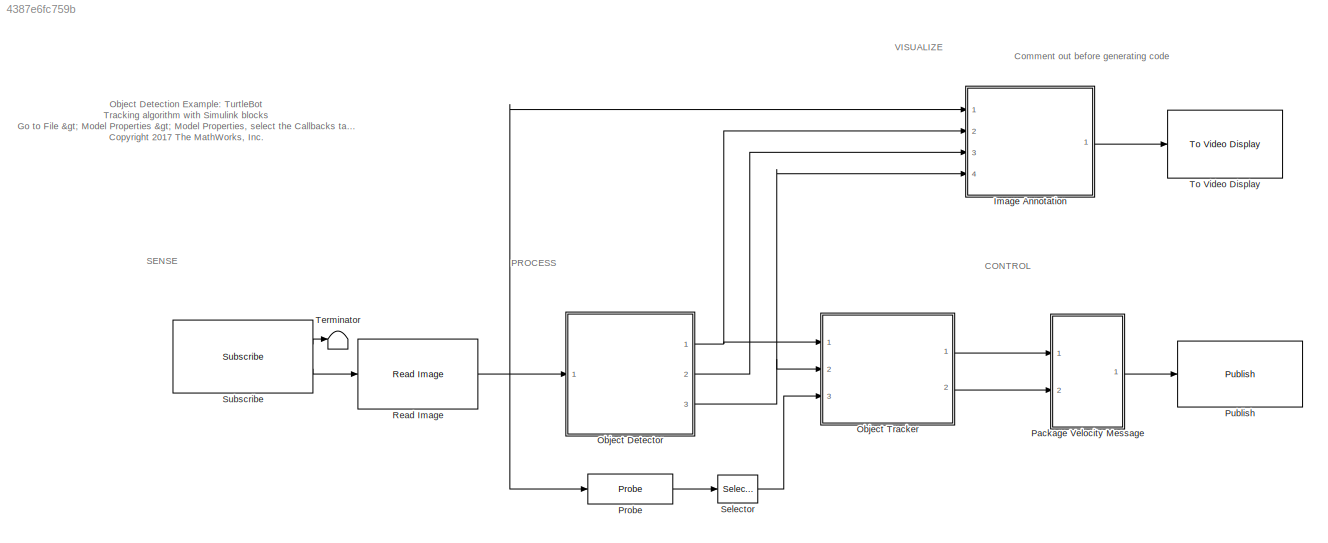
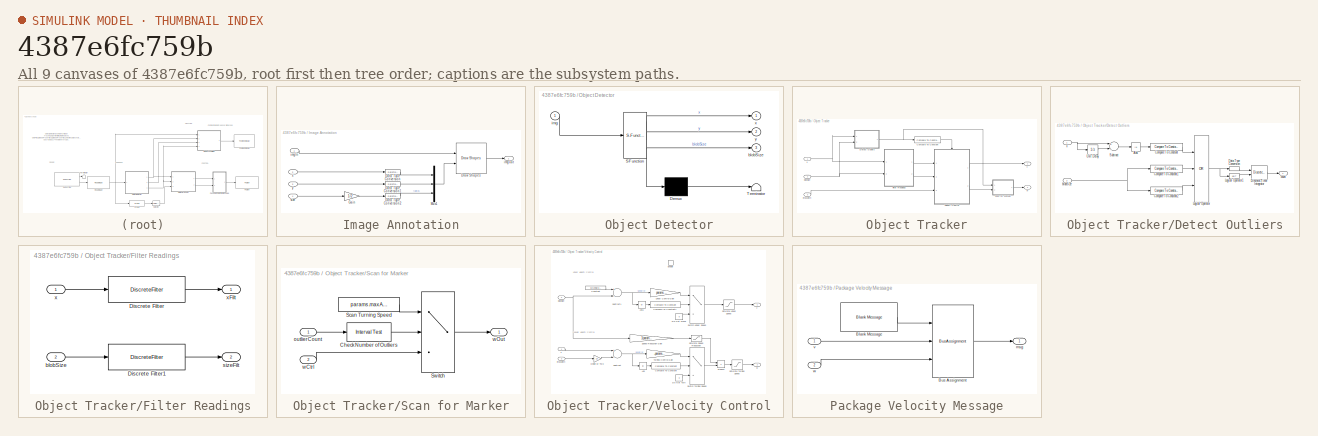
[diagram: thumbnail index - all 9 canvases of the model, root first then tree order]
MODEL slx_4387e6fc759b
KIND model
CONFIG AbsTol = auto
CONFIG EnableMultiTasking = off
CONFIG FixedStep = params.Ts
CONFIG MaxStep = auto
CONFIG MinStep = auto
CONFIG PreLoadFcn = params = controlParams;\n\nrosshutdown;\nloadIpAddresses;\nrosinit(turtlebotIp);
CONFIG RelTol = 1e-3
CONFIG SampleTimeConstraint = Unconstrained
CONFIG Solver = FixedStepDiscrete
CONFIG SolverName = FixedStepDiscrete
CONFIG StartTime = 0.0
CONFIG StopTime = inf
WORKSPACE source: MAT-file member
WORKSPACE SL_ROS_VariableLengthArrays_MaxSizes: struct (value not decoded)
BLOCK [SubSystem] Image Annotation
  Ports = [4, 1]
  RequestExecContextInheritance = off
  Variant = off
BLOCK [DataTypeConversion] Image Annotation/Data Type Conversion
  OutDataTypeStr = int32
  RndMeth = Floor
  SaturateOnIntegerOverflow = off
BLOCK [DataTypeConversion] Image Annotation/Data Type Conversion1
  OutDataTypeStr = int32
  RndMeth = Floor
  SaturateOnIntegerOverflow = off
BLOCK [DataTypeConversion] Image Annotation/Data Type Conversion2
  OutDataTypeStr = int32
  RndMeth = Floor
  SaturateOnIntegerOverflow = off
BLOCK [Reference] Image Annotation/Draw Shapes  REF=visiontextngfix/Draw Shapes
  Ports = [2, 1]
  SourceBlock = visiontextngfix/Draw Shapes
  SourceProductBaseCode = VP
  SourceProductName = Computer Vision System Toolbox
  SourceType = Draw Shapes
BLOCK [Gain] Image Annotation/Gain
  Gain = 1/2
  OutDataTypeStr = Inherit: Inherit via internal rule
  ParamDataTypeStr = Inherit: Inherit via internal rule
  SaturateOnIntegerOverflow = off
BLOCK [Mux] Image Annotation/Mux1
  DisplayOption = bar
  Inputs = 3
  Ports = [3, 1]
BLOCK [Inport] Image Annotation/imgIn
  IconDisplay = Port number
BLOCK [Outport] Image Annotation/imgOut
  IconDisplay = Port number
BLOCK [Inport] Image Annotation/size
  IconDisplay = Port number
  Port = 4
BLOCK [Inport] Image Annotation/x
  IconDisplay = Port number
  Port = 2
BLOCK [Inport] Image Annotation/y
  IconDisplay = Port number
  Port = 3
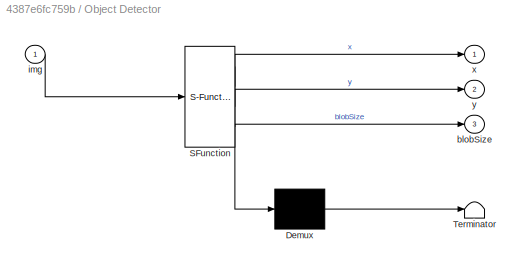
BLOCK [SubSystem] Object Detector
  ErrorFcn = Stateflow.Translate.translate
  PermitHierarchicalResolution = ExplicitOnly
  Ports = [1, 3]
  RequestExecContextInheritance = off
  SFBlockType = MATLAB Function
  TreatAsAtomicUnit = on
  Variant = off
BLOCK [Demux] Object Detector/ Demux 
  Outputs = 1
  Ports = [1, 1]
BLOCK [S-Function] Object Detector/ SFunction 
  EnableBusSupport = on
  FunctionName = sf_sfun
  PortCounts = [1 4]
  Ports = [1, 4]
  SFcnIsStateOwnerBlock = off
  SFunctionDeploymentMode = off
  Tag = Stateflow S-Function turtleBotExampleSimulink 1
BLOCK [Terminator] Object Detector/ Terminator 
BLOCK [Outport] Object Detector/blobSize
  IconDisplay = Port number
  Port = 3
BLOCK [Inport] Object Detector/img
  IconDisplay = Port number
BLOCK [Outport] Object Detector/x
  IconDisplay = Port number
BLOCK [Outport] Object Detector/y
  IconDisplay = Port number
  Port = 2
BLOCK [SubSystem] Object Tracker
  Ports = [3, 2]
  RequestExecContextInheritance = off
  Variant = off
BLOCK [Reference] Object Tracker/Compare To Constant  REF=simulink/Logic and Bit
Operations/Compare
To Constant
  Ports = [1, 1]
  SourceBlock = simulink/Logic and Bit\nOperations/Compare\nTo Constant
  SourceProductBaseCode = SL
  SourceProductName = Simulink
  SourceType = Compare To Constant
BLOCK [SubSystem] Object Tracker/Detect Outliers
  Ports = [2, 1]
  RequestExecContextInheritance = off
  Variant = off
BLOCK [Abs] Object Tracker/Detect Outliers/Abs
  SaturateOnIntegerOverflow = off
BLOCK [Reference] Object Tracker/Detect Outliers/Compare To Constant  REF=simulink/Logic and Bit
Operations/Compare
To Constant
  Ports = [1, 1]
  SourceBlock = simulink/Logic and Bit\nOperations/Compare\nTo Constant
  SourceProductBaseCode = SL
  SourceProductName = Simulink
  SourceType = Compare To Constant
BLOCK [Reference] Object Tracker/Detect Outliers/Compare To Constant1  REF=simulink/Logic and Bit
Operations/Compare
To Constant
  Ports = [1, 1]
  SourceBlock = simulink/Logic and Bit\nOperations/Compare\nTo Constant
  SourceProductBaseCode = SL
  SourceProductName = Simulink
  SourceType = Compare To Constant
BLOCK [Reference] Object Tracker/Detect Outliers/Compare To Constant2  REF=simulink/Logic and Bit
Operations/Compare
To Constant
  Ports = [1, 1]
  SourceBlock = simulink/Logic and Bit\nOperations/Compare\nTo Constant
  SourceProductBaseCode = SL
  SourceProductName = Simulink
  SourceType = Compare To Constant
BLOCK [DataTypeConversion] Object Tracker/Detect Outliers/Data Type Conversion
  OutDataTypeStr = uint16
  RndMeth = Floor
  SaturateOnIntegerOverflow = off
BLOCK [DiscreteIntegrator] Object Tracker/Detect Outliers/Discrete-Time Integrator
  ExternalReset = level
  ICPrevOutput = DiscIntNeverNeededParam
  ICPrevScaledInput = DiscIntNeverNeededParam
  InitialConditionSetting = State (most efficient)
  IntegratorMethod = Accumulation: Forward Euler
  LimitOutput = on
  LowerSaturationLimit = 0
  Ports = [2, 1]
  SampleTime = -1
  SaturateOnIntegerOverflow = on
  UpperSaturationLimit = 1000
BLOCK [Logic] Object Tracker/Detect Outliers/Logical Operator
  AllPortsSameDT = off
  Inputs = 3
  Operator = OR
  OutDataTypeStr = boolean
  Ports = [3, 1]
BLOCK [Logic] Object Tracker/Detect Outliers/Logical Operator1
  AllPortsSameDT = off
  Operator = NOT
  OutDataTypeStr = boolean
  Ports = [1, 1]
BLOCK [Sum] Object Tracker/Detect Outliers/Subtract
  InputSameDT = off
  Inputs = +-
  OutDataTypeStr = Inherit: Inherit via internal rule
  Ports = [2, 1]
  SaturateOnIntegerOverflow = off
BLOCK [UnitDelay] Object Tracker/Detect Outliers/Unit Delay
  InputProcessing = Elements as channels (sample based)
  SampleTime = -1
BLOCK [Inport] Object Tracker/Detect Outliers/blobSize
  IconDisplay = Port number
  Port = 2
BLOCK [Outport] Object Tracker/Detect Outliers/count
  IconDisplay = Port number
BLOCK [Inport] Object Tracker/Detect Outliers/x
  IconDisplay = Port number
BLOCK [SubSystem] Object Tracker/Filter Readings
  Ports = [2, 2]
  RequestExecContextInheritance = off
  Variant = off
BLOCK [DiscreteFilter] Object Tracker/Filter Readings/Discrete Filter
  Denominator = [params.bufSize]
  InputPortMap = u0
  Numerator = [ones(1,params.bufSize)]
  Ports = [1, 1]
BLOCK [DiscreteFilter] Object Tracker/Filter Readings/Discrete Filter1
  Denominator = [params.bufSize]
  InputPortMap = u0
  Numerator = [ones(1,params.bufSize)]
  Ports = [1, 1]
BLOCK [Inport] Object Tracker/Filter Readings/blobSize
  IconDisplay = Port number
  Port = 2
BLOCK [Outport] Object Tracker/Filter Readings/sizeFilt
  IconDisplay = Port number
  Port = 2
BLOCK [Inport] Object Tracker/Filter Readings/x
  IconDisplay = Port number
BLOCK [Outport] Object Tracker/Filter Readings/xFilt
  IconDisplay = Port number
BLOCK [SubSystem] Object Tracker/Scan for Marker
  Ports = [2, 1]
  RequestExecContextInheritance = off
  Variant = off
BLOCK [Reference] Object Tracker/Scan for Marker/Check Number of Outliers  REF=simulink/Logic and Bit
Operations/Interval Test
  Ports = [1, 1]
  SourceBlock = simulink/Logic and Bit\nOperations/Interval Test
  SourceProductBaseCode = SL
  SourceProductName = Simulink
  SourceType = Interval Test
BLOCK [Constant] Object Tracker/Scan for Marker/Scan Turning Speed
  Value = params.maxAngVel/2
BLOCK [Switch] Object Tracker/Scan for Marker/Switch
  Criteria = u2 > Threshold
  InputSameDT = off
  SaturateOnIntegerOverflow = off
BLOCK [Inport] Object Tracker/Scan for Marker/outlierCount
  IconDisplay = Port number
BLOCK [Inport] Object Tracker/Scan for Marker/wCtrl
  IconDisplay = Port number
  Port = 2
BLOCK [Outport] Object Tracker/Scan for Marker/wOut
  IconDisplay = Port number
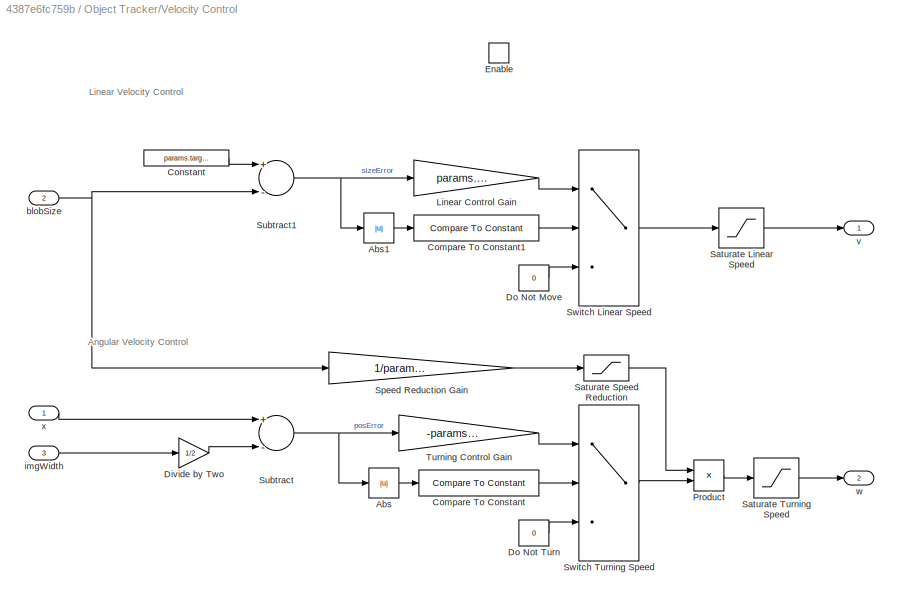
BLOCK [SubSystem] Object Tracker/Velocity Control
  Ports = [3, 2, 1]
  RequestExecContextInheritance = off
  Variant = off
BLOCK [Abs] Object Tracker/Velocity Control/Abs
  SaturateOnIntegerOverflow = off
BLOCK [Abs] Object Tracker/Velocity Control/Abs1
  SaturateOnIntegerOverflow = off
BLOCK [Reference] Object Tracker/Velocity Control/Compare To Constant  REF=simulink/Logic and Bit
Operations/Compare
To Constant
  Ports = [1, 1]
  SourceBlock = simulink/Logic and Bit\nOperations/Compare\nTo Constant
  SourceProductBaseCode = SL
  SourceProductName = Simulink
  SourceType = Compare To Constant
BLOCK [Reference] Object Tracker/Velocity Control/Compare To Constant1  REF=simulink/Logic and Bit
Operations/Compare
To Constant
  Ports = [1, 1]
  SourceBlock = simulink/Logic and Bit\nOperations/Compare\nTo Constant
  SourceProductBaseCode = SL
  SourceProductName = Simulink
  SourceType = Compare To Constant
BLOCK [Constant] Object Tracker/Velocity Control/Constant
  Value = params.targetSize
BLOCK [Gain] Object Tracker/Velocity Control/Divide by Two
  Gain = 1/2
  OutDataTypeStr = Inherit: Inherit via internal rule
  ParamDataTypeStr = Inherit: Inherit via internal rule
  SaturateOnIntegerOverflow = off
BLOCK [Constant] Object Tracker/Velocity Control/Do Not Move
  Value = 0
BLOCK [Constant] Object Tracker/Velocity Control/Do Not Turn
  Value = 0
BLOCK [EnablePort] Object Tracker/Velocity Control/Enable
  Ports = []
  StatesWhenEnabling = reset
BLOCK [Gain] Object Tracker/Velocity Control/Linear Control Gain
  Gain = params.linVelGain
  OutDataTypeStr = Inherit: Inherit via internal rule
  ParamDataTypeStr = Inherit: Inherit via internal rule
  SaturateOnIntegerOverflow = off
BLOCK [Product] Object Tracker/Velocity Control/Product
  InputSameDT = off
  OutDataTypeStr = Inherit: Inherit via internal rule
  Ports = [2, 1]
  RndMeth = Floor
  SaturateOnIntegerOverflow = off
BLOCK [Saturate] Object Tracker/Velocity Control/Saturate Linear Speed
  InputPortMap = u0
  LowerLimit = -params.maxLinVel
  Ports = [1, 1]
  UpperLimit = params.maxLinVel
BLOCK [Saturate] Object Tracker/Velocity Control/Saturate Speed Reduction
  InputPortMap = u0
  LowerLimit = 0
  Ports = [1, 1]
  UpperLimit = 1
BLOCK [Saturate] Object Tracker/Velocity Control/Saturate Turning Speed
  InputPortMap = u0
  LowerLimit = -params.maxAngVel
  Ports = [1, 1]
  UpperLimit = params.maxAngVel
BLOCK [Gain] Object Tracker/Velocity Control/Speed Reduction Gain
  Gain = 1/params.speedRedSize
  OutDataTypeStr = Inherit: Inherit via internal rule
  ParamDataTypeStr = Inherit: Inherit via internal rule
  SaturateOnIntegerOverflow = off
BLOCK [Sum] Object Tracker/Velocity Control/Subtract
  InputSameDT = off
  Inputs = +-
  OutDataTypeStr = Inherit: Inherit via internal rule
  Ports = [2, 1]
  SaturateOnIntegerOverflow = off
BLOCK [Sum] Object Tracker/Velocity Control/Subtract1
  InputSameDT = off
  Inputs = +-
  OutDataTypeStr = Inherit: Inherit via internal rule
  Ports = [2, 1]
  SaturateOnIntegerOverflow = off
BLOCK [Switch] Object Tracker/Velocity Control/Switch Linear Speed
  Criteria = u2 ~= 0
  InputSameDT = off
  SaturateOnIntegerOverflow = off
BLOCK [Switch] Object Tracker/Velocity Control/Switch Turning Speed
  Criteria = u2 ~= 0
  InputSameDT = off
  SaturateOnIntegerOverflow = off
BLOCK [Gain] Object Tracker/Velocity Control/Turning Control Gain
  Gain = -params.angVelGain
  OutDataTypeStr = Inherit: Inherit via internal rule
  ParamDataTypeStr = Inherit: Inherit via internal rule
  SaturateOnIntegerOverflow = off
BLOCK [Inport] Object Tracker/Velocity Control/blobSize
  IconDisplay = Port number
  Port = 2
BLOCK [Inport] Object Tracker/Velocity Control/imgWidth
  IconDisplay = Port number
  Port = 3
BLOCK [Outport] Object Tracker/Velocity Control/v
  IconDisplay = Port number
  InitialOutput = 0
  OutputWhenDisabled = reset
BLOCK [Outport] Object Tracker/Velocity Control/w
  IconDisplay = Port number
  InitialOutput = 0
  OutputWhenDisabled = reset
  Port = 2
BLOCK [Inport] Object Tracker/Velocity Control/x
  IconDisplay = Port number
BLOCK [Inport] Object Tracker/blobSize
  IconDisplay = Port number
  Port = 2
BLOCK [Inport] Object Tracker/imgWidth
  IconDisplay = Port number
  Port = 3
BLOCK [Outport] Object Tracker/v
  IconDisplay = Port number
BLOCK [Outport] Object Tracker/w
  IconDisplay = Port number
  Port = 2
BLOCK [Inport] Object Tracker/x
  IconDisplay = Port number
BLOCK [SubSystem] Package Velocity Message
  Ports = [2, 1]
  RequestExecContextInheritance = off
  Variant = off
BLOCK [Reference] Package Velocity Message/Blank Message  REF=robotlib/Blank Message
  Ports = [0, 1]
  SourceBlock = robotlib/Blank Message
  SourceLibraryInfo = This block requires Robotics System Toolbox
  SourceProductBaseCode = RO
  SourceProductName = Robotics System Toolbox
  SourceType = ROS Blank Message
BLOCK [BusAssignment] Package Velocity Message/Bus Assignment
  AssignedSignals = Linear.X,Angular.Z
  Ports = [3, 1]
BLOCK [Outport] Package Velocity Message/msg
  IconDisplay = Port number
BLOCK [Inport] Package Velocity Message/v
  IconDisplay = Port number
BLOCK [Inport] Package Velocity Message/w
  IconDisplay = Port number
  Port = 2
BLOCK [Probe] Probe
  Ports = [1, 1]
  ProbeComplexSignal = off
  ProbeSampleTime = off
  ProbeSignalDimensions = on
  ProbeWidth = off
BLOCK [Reference] Publish  REF=robotlib/Publish
  Ports = [1]
  SourceBlock = robotlib/Publish
  SourceLibraryInfo = This block requires Robotics System Toolbox
  SourceProductBaseCode = RO
  SourceProductName = Robotics System Toolbox
  SourceType = ROS Publish
BLOCK [Reference] Read Image  REF=robotlib/Read Image
  Ports = [1, 1]
  SourceBlock = robotlib/Read Image
  SourceLibraryInfo = This block requires Robotics System Toolbox
  SourceProductBaseCode = RO
  SourceProductName = Robotics System Toolbox
  SourceType = robotics.slros.internal.block.ReadImage
BLOCK [Selector] Selector
  IndexOptions = Index vector (dialog)
  Indices = 2
  InputPortWidth = 3
  OutputSizes = 1
  Ports = [1, 1]
BLOCK [Reference] Subscribe  REF=robotlib/Subscribe
  Ports = [0, 2]
  SourceBlock = robotlib/Subscribe
  SourceLibraryInfo = This block requires Robotics System Toolbox
  SourceProductBaseCode = RO
  SourceProductName = Robotics System Toolbox
  SourceType = ROS Subscribe
BLOCK [Terminator] Terminator
BLOCK [Reference] To Video Display  REF=visionsinks/To Video Display
  Ports = [1]
  SourceBlock = visionsinks/To Video Display
  SourceProductBaseCode = VP
  SourceProductName = Computer Vision System Toolbox
  SourceType = To Video Display
ANNOTATION (root): Object Detection Example: TurtleBot Tracking algorithm with Simulink blocks Go to File > Model Properties > Model Properties , select the Callbacks tab, and go to PreLoadFcn . Here, you can set up MATLAB code to run when loading the model, such as initalizing ROS with the correct IP address. <copyright redacted>
ANNOTATION (root): CONTROL
ANNOTATION (root): Comment out before generating code
ANNOTATION (root): PROCESS
ANNOTATION (root): SENSE
ANNOTATION (root): VISUALIZE
ANNOTATION Object Tracker/Velocity Control: Angular Velocity Control
ANNOTATION Object Tracker/Velocity Control: Linear Velocity Control
LINE Image Annotation/Data Type Conversion1:1 -> Image Annotation/Mux1:2
LINE Image Annotation/Data Type Conversion2:1 -> Image Annotation/Mux1:3
LINE Image Annotation/Data Type Conversion:1 -> Image Annotation/Mux1:1
LINE Image Annotation/Draw Shapes:1 -> Image Annotation/imgOut:1
LINE Image Annotation/Gain:1 -> Image Annotation/Data Type Conversion2:1
LINE Image Annotation/Mux1:1 -> Image Annotation/Draw Shapes:2
LINE Image Annotation/imgIn:1 -> Image Annotation/Draw Shapes:1
LINE Image Annotation/size:1 -> Image Annotation/Gain:1
LINE Image Annotation/x:1 -> Image Annotation/Data Type Conversion:1
LINE Image Annotation/y:1 -> Image Annotation/Data Type Conversion1:1
LINE Image Annotation:1 -> To Video Display:1
NET Object Detector:1 -> Image Annotation:2, Object Tracker:1
LINE Object Detector:2 -> Image Annotation:3
NET Object Detector:3 -> Image Annotation:4, Object Tracker:2
LINE Object Tracker/Compare To Constant:1 -> Object Tracker/Velocity Control:enable
LINE Object Tracker/Detect Outliers/Abs:1 -> Object Tracker/Detect Outliers/Compare To Constant:1
LINE Object Tracker/Detect Outliers/Compare To Constant1:1 -> Object Tracker/Detect Outliers/Logical Operator:2
LINE Object Tracker/Detect Outliers/Compare To Constant2:1 -> Object Tracker/Detect Outliers/Logical Operator:3
LINE Object Tracker/Detect Outliers/Compare To Constant:1 -> Object Tracker/Detect Outliers/Logical Operator:1
LINE Object Tracker/Detect Outliers/Data Type Conversion:1 -> Object Tracker/Detect Outliers/Discrete-Time Integrator:1
LINE Object Tracker/Detect Outliers/Discrete-Time Integrator:1 -> Object Tracker/Detect Outliers/count:1
LINE Object Tracker/Detect Outliers/Logical Operator1:1 -> Object Tracker/Detect Outliers/Discrete-Time Integrator:2
NET Object Tracker/Detect Outliers/Logical Operator:1 -> Object Tracker/Detect Outliers/Data Type Conversion:1, Object Tracker/Detect Outliers/Logical Operator1:1
LINE Object Tracker/Detect Outliers/Subtract:1 -> Object Tracker/Detect Outliers/Abs:1
LINE Object Tracker/Detect Outliers/Unit Delay:1 -> Object Tracker/Detect Outliers/Subtract:2
NET Object Tracker/Detect Outliers/blobSize:1 -> Object Tracker/Detect Outliers/Compare To Constant1:1, Object Tracker/Detect Outliers/Compare To Constant2:1
NET Object Tracker/Detect Outliers/x:1 -> Object Tracker/Detect Outliers/Subtract:1, Object Tracker/Detect Outliers/Unit Delay:1
NET Object Tracker/Detect Outliers:1 -> Object Tracker/Compare To Constant:1, Object Tracker/Scan for Marker:1
LINE Object Tracker/Filter Readings/Discrete Filter1:1 -> Object Tracker/Filter Readings/sizeFilt:1
LINE Object Tracker/Filter Readings/Discrete Filter:1 -> Object Tracker/Filter Readings/xFilt:1
LINE Object Tracker/Filter Readings/blobSize:1 -> Object Tracker/Filter Readings/Discrete Filter1:1
LINE Object Tracker/Filter Readings/x:1 -> Object Tracker/Filter Readings/Discrete Filter:1
LINE Object Tracker/Filter Readings:1 -> Object Tracker/Velocity Control:1
LINE Object Tracker/Filter Readings:2 -> Object Tracker/Velocity Control:2
LINE Object Tracker/Scan for Marker/Check Number of Outliers:1 -> Object Tracker/Scan for Marker/Switch:2
LINE Object Tracker/Scan for Marker/Scan Turning Speed:1 -> Object Tracker/Scan for Marker/Switch:1
LINE Object Tracker/Scan for Marker/Switch:1 -> Object Tracker/Scan for Marker/wOut:1
LINE Object Tracker/Scan for Marker/outlierCount:1 -> Object Tracker/Scan for Marker/Check Number of Outliers:1
LINE Object Tracker/Scan for Marker/wCtrl:1 -> Object Tracker/Scan for Marker/Switch:3
LINE Object Tracker/Scan for Marker:1 -> Object Tracker/w:1
LINE Object Tracker/Velocity Control/Abs1:1 -> Object Tracker/Velocity Control/Compare To Constant1:1
LINE Object Tracker/Velocity Control/Abs:1 -> Object Tracker/Velocity Control/Compare To Constant:1
LINE Object Tracker/Velocity Control/Compare To Constant1:1 -> Object Tracker/Velocity Control/Switch Linear Speed:2
LINE Object Tracker/Velocity Control/Compare To Constant:1 -> Object Tracker/Velocity Control/Switch Turning Speed:2
LINE Object Tracker/Velocity Control/Constant:1 -> Object Tracker/Velocity Control/Subtract1:1
LINE Object Tracker/Velocity Control/Divide by Two:1 -> Object Tracker/Velocity Control/Subtract:2
LINE Object Tracker/Velocity Control/Do Not Move:1 -> Object Tracker/Velocity Control/Switch Linear Speed:3
LINE Object Tracker/Velocity Control/Do Not Turn:1 -> Object Tracker/Velocity Control/Switch Turning Speed:3
LINE Object Tracker/Velocity Control/Linear Control Gain:1 -> Object Tracker/Velocity Control/Switch Linear Speed:1
LINE Object Tracker/Velocity Control/Product:1 -> Object Tracker/Velocity Control/Saturate Turning Speed:1
LINE Object Tracker/Velocity Control/Saturate Linear Speed:1 -> Object Tracker/Velocity Control/v:1
LINE Object Tracker/Velocity Control/Saturate Speed Reduction:1 -> Object Tracker/Velocity Control/Product:1
LINE Object Tracker/Velocity Control/Saturate Turning Speed:1 -> Object Tracker/Velocity Control/w:1
LINE Object Tracker/Velocity Control/Speed Reduction Gain:1 -> Object Tracker/Velocity Control/Saturate Speed Reduction:1
NET Object Tracker/Velocity Control/Subtract1:1 -> Object Tracker/Velocity Control/Abs1:1, Object Tracker/Velocity Control/Linear Control Gain:1
NET Object Tracker/Velocity Control/Subtract:1 -> Object Tracker/Velocity Control/Abs:1, Object Tracker/Velocity Control/Turning Control Gain:1
LINE Object Tracker/Velocity Control/Switch Linear Speed:1 -> Object Tracker/Velocity Control/Saturate Linear Speed:1
LINE Object Tracker/Velocity Control/Switch Turning Speed:1 -> Object Tracker/Velocity Control/Product:2
LINE Object Tracker/Velocity Control/Turning Control Gain:1 -> Object Tracker/Velocity Control/Switch Turning Speed:1
NET Object Tracker/Velocity Control/blobSize:1 -> Object Tracker/Velocity Control/Speed Reduction Gain:1, Object Tracker/Velocity Control/Subtract1:2
LINE Object Tracker/Velocity Control/imgWidth:1 -> Object Tracker/Velocity Control/Divide by Two:1
LINE Object Tracker/Velocity Control/x:1 -> Object Tracker/Velocity Control/Subtract:1
LINE Object Tracker/Velocity Control:1 -> Object Tracker/v:1
LINE Object Tracker/Velocity Control:2 -> Object Tracker/Scan for Marker:2
NET Object Tracker/blobSize:1 -> Object Tracker/Detect Outliers:2, Object Tracker/Filter Readings:2
LINE Object Tracker/imgWidth:1 -> Object Tracker/Velocity Control:3
NET Object Tracker/x:1 -> Object Tracker/Detect Outliers:1, Object Tracker/Filter Readings:1
LINE Object Tracker:1 -> Package Velocity Message:1
LINE Object Tracker:2 -> Package Velocity Message:2
LINE Package Velocity Message/Blank Message:1 -> Package Velocity Message/Bus Assignment:1
LINE Package Velocity Message/Bus Assignment:1 -> Package Velocity Message/msg:1
LINE Package Velocity Message/v:1 -> Package Velocity Message/Bus Assignment:2
LINE Package Velocity Message/w:1 -> Package Velocity Message/Bus Assignment:3
LINE Package Velocity Message:1 -> Publish:1
LINE Probe:1 -> Selector:1
NET Read Image:1 -> Image Annotation:1, Object Detector:1, Probe:1
LINE Selector:1 -> Object Tracker:3
LINE Subscribe:1 -> Terminator:1
LINE Subscribe:2 -> Read Image:1
note: NET lines group one-source signal fan-out (src -> all destinations, sorted); 1:1 wires keep LINE
CHART Object Detector states=1 transitions=1
  STATE_LABEL 'eML_blk_kernel()'
  STATE_LABEL 'SCRIPT:\nfunction [x,y,blobSize] = CircleDetection(img)\n    \n    % Initialize outputs\n    x = 0;\n    y = 0;\n    blobSize = 0;\n    \n    % Call external function\n    resizeScale = 0.5;\n    [x,y,blobSize] = detectCircle(img,resizeScale);\n\nend\n'
